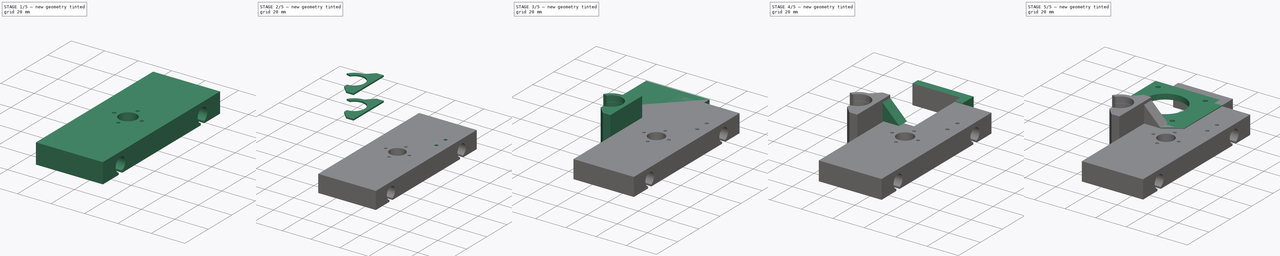
[diagram: build sequence overview — one tinted view per stage of 5, left to right]
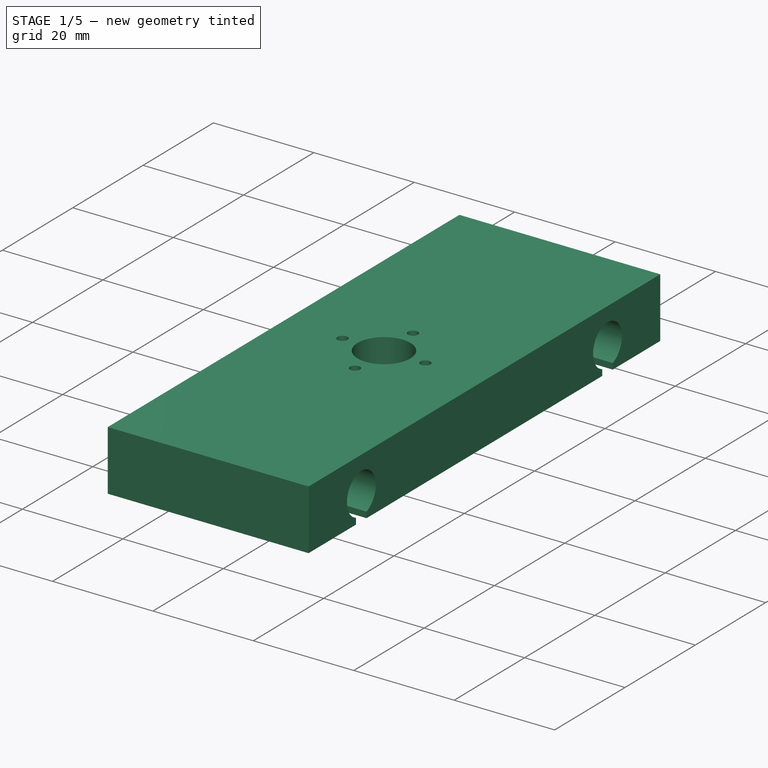
[diagram: stage 1 of 5 — iso view after this stage's code; geometry added in this stage tinted green]
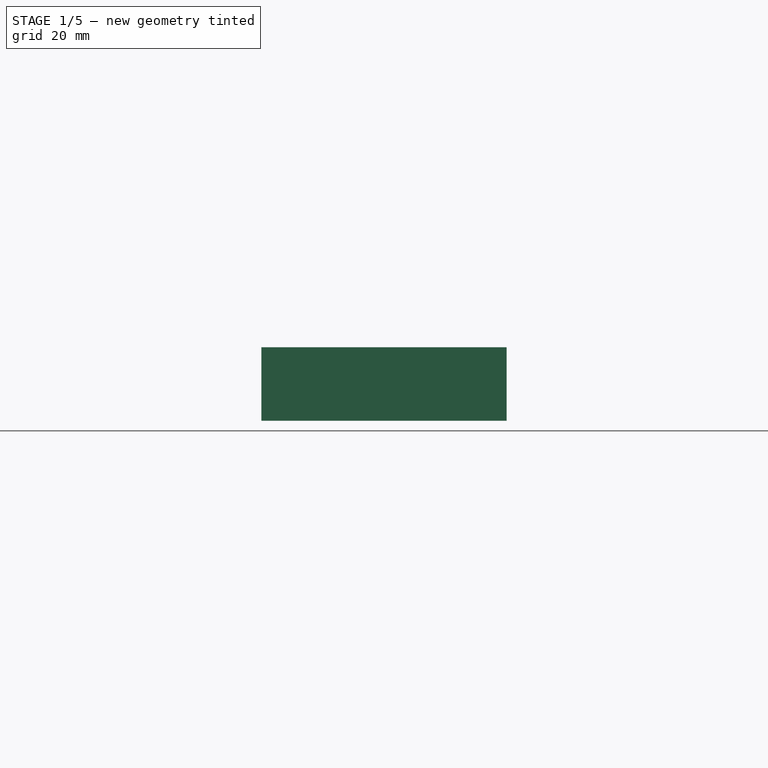
[diagram: stage 1 of 5 — front view after this stage's code; geometry added in this stage tinted green]
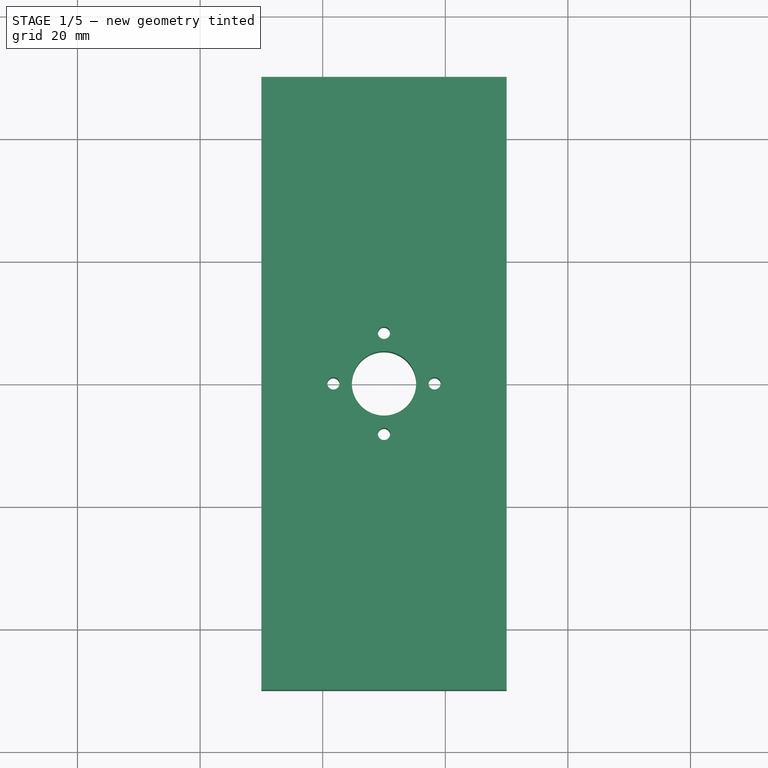
[diagram: stage 1 of 5 — top view after this stage's code; geometry added in this stage tinted green]
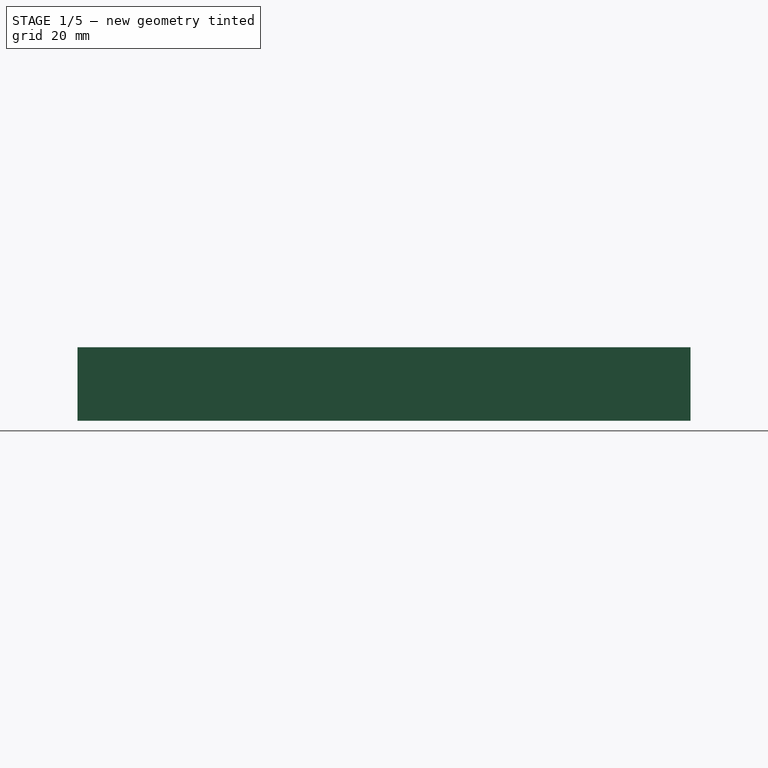
[diagram: stage 1 of 5 — right view after this stage's code; geometry added in this stage tinted green]
FCSTD DOCUMENT  (FreeCAD 0.15R4671 (Git))
Label: RShoulderV6
License: All rights reserved
LicenseURL: http://en.wikipedia.org/wiki/All_rights_reserved
objects: Sketcher::SketchObject×13, PartDesign::Pad×9, PartDesign::Pocket×4, Part::MultiFuse×2, Part::Cut×1
note: 42 computed .brp shape members not serialized (recipe doc carries the construction recipe); baked Part::Feature solids carry a one-line shape summary decoded from their .brp

FEATURE [Sketcher::SketchObject] Sketch  label="BaseSk"
  sketch-geometry (7):
    g0: Circle CenterX=30 CenterY=0 CenterZ=0 NormalX=0 NormalY=0 NormalZ=1 Radius=5.25
    g1: LineSegment StartX=50 StartY=-50 StartZ=0 EndX=50 EndY=50 EndZ=0
    g2: LineSegment StartX=10 StartY=20 StartZ=0 EndX=10 EndY=50 EndZ=0
    g3: LineSegment StartX=10 StartY=50 StartZ=0 EndX=50 EndY=50 EndZ=0
    g4: LineSegment StartX=10 StartY=-13.3852 StartZ=0 EndX=10 EndY=-50 EndZ=0
    g5: LineSegment StartX=10 StartY=-50 StartZ=0 EndX=50 EndY=-50 EndZ=0
    g6: LineSegment StartX=10 StartY=-13.3852 StartZ=0 EndX=10 EndY=20 EndZ=0
  constraints (14):
    c: Radius(g0) = 5.25
    c: DistanceX(g-1,g0) = 30
    c: Vertical(g1)
    c: DistanceY(g1,g1) = -100
    c: Vertical(g2)
    c: Coincident(g3,g1)
    c: Horizontal(g3)
    c: Vertical(g4)
    c: Coincident(g5,g4)
    c: Coincident(g5,g1)
    c: Horizontal(g5)
    c: Vertical(g6)
    c: Coincident(g2,g6)
    c: Coincident(g6,g4)
FEATURE [PartDesign::Pad] Pad  label="Base"
  Length = 12
  Length2 = 100
  Sketch = -> Sketch
  Type = 0
FEATURE [Sketcher::SketchObject] Sketch001  label="HorizontalRods"
  Placement = pos=(50,0,0) rot=(0.57735,0.57735,0.57735;2.0944rad)
  Support = -> Pad [Face3]
  sketch-geometry (8):
    g0: LineSegment StartX=-33.5116 StartY=1.1797 StartZ=0 EndX=-33.5116 EndY=0 EndZ=0
    g1: LineSegment StartX=-33.5116 StartY=0 StartZ=0 EndX=-36.5116 EndY=0 EndZ=0
    g2: LineSegment StartX=-36.5116 StartY=0 StartZ=0 EndX=-36.5116 EndY=1.18882 EndZ=0
    g3: LineSegment StartX=36.5 StartY=1.18424 StartZ=0 EndX=36.5 EndY=0 EndZ=0
    g4: LineSegment StartX=36.5 StartY=0 StartZ=0 EndX=33.5 EndY=0 EndZ=0
    g5: LineSegment StartX=33.5 StartY=0 StartZ=0 EndX=33.5 EndY=1.18424 EndZ=0
    g6: ArcOfCircle CenterX=35 CenterY=5 CenterZ=0 NormalX=0 NormalY=0 NormalZ=1 Radius=4.1 StartAngle=5.08694 EndAngle=10.621
    g7: ArcOfCircle CenterX=-35 CenterY=5 CenterZ=0 NormalX=0 NormalY=0 NormalZ=1 Radius=4.1 StartAngle=5.0839 EndAngle=10.618
  constraints (18):
    c: Coincident(g0,g1)
    c: Coincident(g1,g2)
    c: Horizontal(g1)
    c: Vertical(g0)
    c: Vertical(g2)
    c: DistanceX(g0,g2) = -3
    c: Coincident(g3,g4)
    c: Coincident(g4,g5)
    c: Horizontal(g4)
    c: Vertical(g3)
    c: Vertical(g5)
    c: DistanceX(g5,g3) = 3
    c: Coincident(g6,g3)
    c: Coincident(g6,g5)
    c: Coincident(g7,g0)
    c: Coincident(g7,g2)
    c: Radius(g7) = 4.1
    c: Radius(g6) = 4.1
FEATURE [PartDesign::Pocket] Pocket
  Length = 25
  Sketch = -> Sketch001
  Type = 0
FEATURE [Sketcher::SketchObject] Sketch005  label="NutScrewHoles"
  Placement = pos=(0,0,12) rot=(0,0,1;0rad)
  Support = -> Pocket [Face5]
  sketch-geometry (4):
    g0: Circle CenterX=29.9972 CenterY=8.25 CenterZ=0 NormalX=0 NormalY=0 NormalZ=1 Radius=1
    g1: Circle CenterX=21.7472 CenterY=0 CenterZ=0 NormalX=0 NormalY=0 NormalZ=1 Radius=1
    g2: Circle CenterX=38.2471 CenterY=0 CenterZ=0 NormalX=0 NormalY=0 NormalZ=1 Radius=1
    g3: Circle CenterX=29.9972 CenterY=-8.25 CenterZ=0 NormalX=0 NormalY=0 NormalZ=1 Radius=1
  constraints (11):
    c: PointOnObject(g1,g-1)
    c: Radius(g3) = 1
    c: Equal(g3,g2)
    c: Equal(g3,g0)
    c: Equal(g3,g1)
    c: PointOnObject(g2,g-1)
    c: DistanceX(g3,g0) = 0
    c: DistanceY(g3,g0) = 16.5
    c: DistanceX(g1,g2) = 16.5
    c: DistanceY(g0,g2) = -8.25
    c: DistanceX(g2,g0) = -8.25
FEATURE [PartDesign::Pocket] Pocket001
  Length = 12
  Sketch = -> Sketch005
  Type = 0
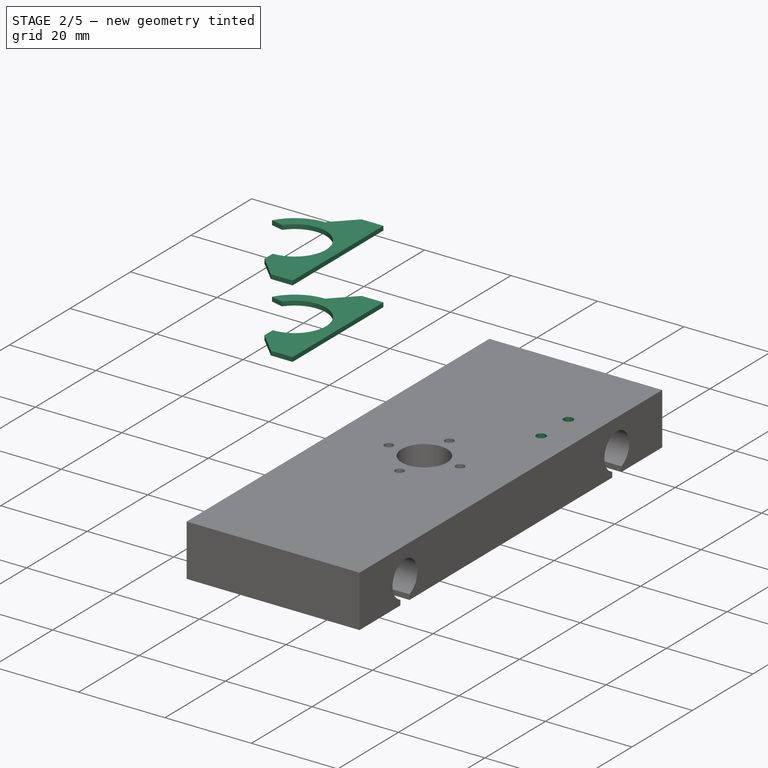
[diagram: stage 2 of 5 — iso view after this stage's code; geometry added in this stage tinted green]
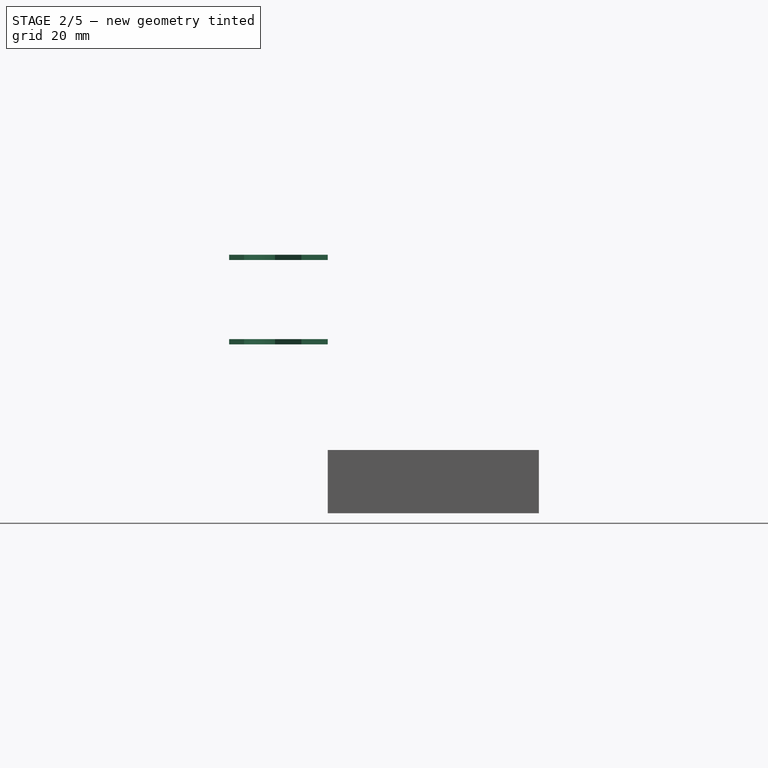
[diagram: stage 2 of 5 — front view after this stage's code; geometry added in this stage tinted green]
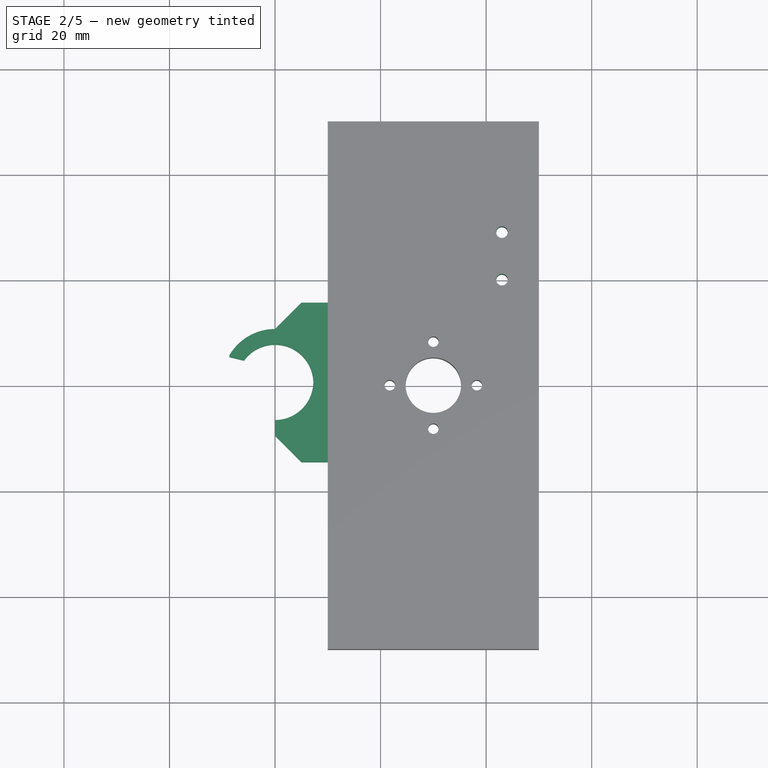
[diagram: stage 2 of 5 — top view after this stage's code; geometry added in this stage tinted green]
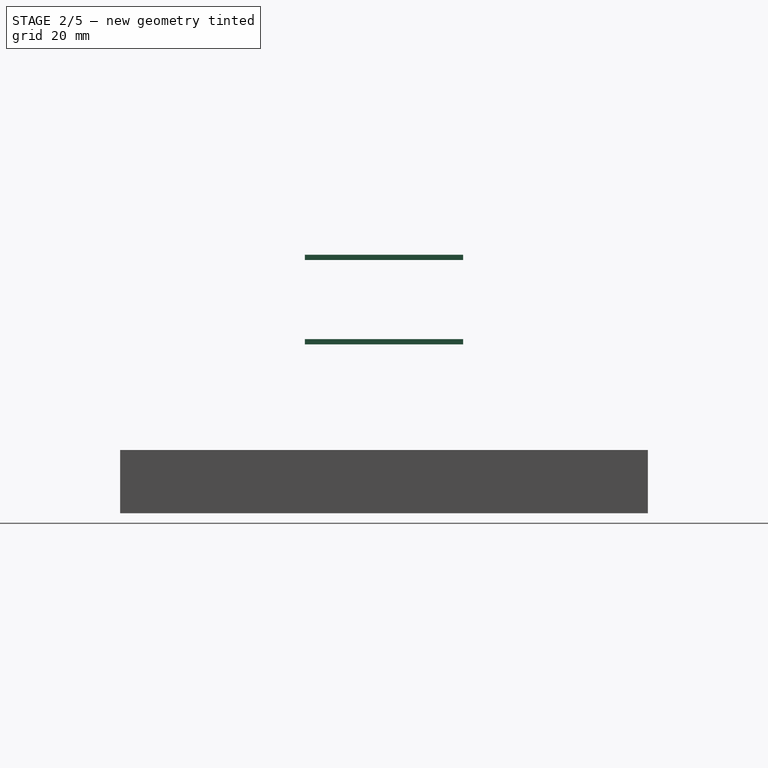
[diagram: stage 2 of 5 — right view after this stage's code; geometry added in this stage tinted green]
FEATURE [Sketcher::SketchObject] Sketch016  label="Base007"
  Placement = pos=(0,0,32) rot=(0,0,1;0rad)
  sketch-geometry (9):
    g0: LineSegment StartX=-5.8767 StartY=4.24581 StartZ=0 EndX=-8.70018 EndY=4.9302 EndZ=0
    g1: ArcOfCircle CenterX=0 CenterY=0 CenterZ=0 NormalX=0 NormalY=0 NormalZ=1 Radius=10 StartAngle=1.5708 EndAngle=2.62603
    g2: LineSegment StartX=4.98503 StartY=-15 StartZ=0 EndX=10 EndY=-15 EndZ=0
    g3: LineSegment StartX=10 StartY=-15 StartZ=0 EndX=10 EndY=15 EndZ=0
    g4: LineSegment StartX=10 StartY=15 StartZ=0 EndX=4.98503 EndY=15 EndZ=0
    g5: LineSegment StartX=-1e-12 StartY=10 StartZ=0 EndX=4.98503 EndY=15 EndZ=0
    g6: LineSegment StartX=0 StartY=-10 StartZ=0 EndX=4.98503 EndY=-15 EndZ=0
    g7: ArcOfCircle CenterX=0 CenterY=0 CenterZ=0 NormalX=0 NormalY=0 NormalZ=1 Radius=7.25 StartAngle=4.71239 EndAngle=8.79912
    g8: LineSegment StartX=0 StartY=-7.25 StartZ=0 EndX=0 EndY=-10 EndZ=0
  constraints (21):
    c: PointOnObject(g1,g-2)
    c: PointOnObject(g6,g-2)
    c: Coincident(g1,g-1)
    c: Coincident(g1,g0)
    c: Horizontal(g2)
    c: Coincident(g3,g2)
    c: Vertical(g3)
    c: Coincident(g4,g3)
    c: Horizontal(g4)
    c: DistanceY(g3,g2) = -30
    c: DistanceY(g-1,g3) = 15
    c: Coincident(g5,g1)
    c: Coincident(g5,g4)
    c: Coincident(g6,g2)
    c: DistanceX(g-1,g2) = 4.98503
    c: DistanceX(g2,g4) = 0
    c: Coincident(g7,g-1)
    c: Coincident(g7,g0)
    c: Coincident(g8,g7)
    c: Coincident(g8,g6)
    c: Vertical(g8)
FEATURE [Sketcher::SketchObject] Sketch017  label="Base008"
  Placement = pos=(0,0,48) rot=(0,0,1;0rad)
  sketch-geometry (9):
    g0: LineSegment StartX=-5.8767 StartY=4.24581 StartZ=0 EndX=-8.70018 EndY=4.9302 EndZ=0
    g1: ArcOfCircle CenterX=0 CenterY=0 CenterZ=0 NormalX=0 NormalY=0 NormalZ=1 Radius=10 StartAngle=1.5708 EndAngle=2.62603
    g2: LineSegment StartX=4.98503 StartY=-15 StartZ=0 EndX=10 EndY=-15 EndZ=0
    g3: LineSegment StartX=10 StartY=-15 StartZ=0 EndX=10 EndY=15 EndZ=0
    g4: LineSegment StartX=10 StartY=15 StartZ=0 EndX=4.98503 EndY=15 EndZ=0
    g5: LineSegment StartX=-1e-12 StartY=10 StartZ=0 EndX=4.98503 EndY=15 EndZ=0
    g6: LineSegment StartX=0 StartY=-10 StartZ=0 EndX=4.98503 EndY=-15 EndZ=0
    g7: ArcOfCircle CenterX=0 CenterY=0 CenterZ=0 NormalX=0 NormalY=0 NormalZ=1 Radius=7.25 StartAngle=4.71239 EndAngle=8.79912
    g8: LineSegment StartX=0 StartY=-7.25 StartZ=0 EndX=0 EndY=-10 EndZ=0
  constraints (21):
    c: PointOnObject(g1,g-2)
    c: PointOnObject(g6,g-2)
    c: Coincident(g1,g-1)
    c: Coincident(g1,g0)
    c: Horizontal(g2)
    c: Coincident(g3,g2)
    c: Vertical(g3)
    c: Coincident(g4,g3)
    c: Horizontal(g4)
    c: DistanceY(g3,g2) = -30
    c: DistanceY(g-1,g3) = 15
    c: Coincident(g5,g1)
    c: Coincident(g5,g4)
    c: Coincident(g6,g2)
    c: DistanceX(g-1,g2) = 4.98503
    c: DistanceX(g2,g4) = 0
    c: Coincident(g7,g-1)
    c: Coincident(g7,g0)
    c: Coincident(g8,g7)
    c: Coincident(g8,g6)
    c: Vertical(g8)
FEATURE [PartDesign::Pad] Pad016
  Length = 1
  Length2 = 100
  Placement = pos=(0,0,32) rot=(0,0,1;0rad)
  Sketch = -> Sketch016
  Type = 0
FEATURE [PartDesign::Pad] Pad017
  Length = 1
  Length2 = 100
  Placement = pos=(0,0,48) rot=(0,0,1;0rad)
  Sketch = -> Sketch017
  Type = 0
FEATURE [PartDesign::Pocket] Pocket002
  Length = 12
  Sketch = -> Sketch014
  Type = 0
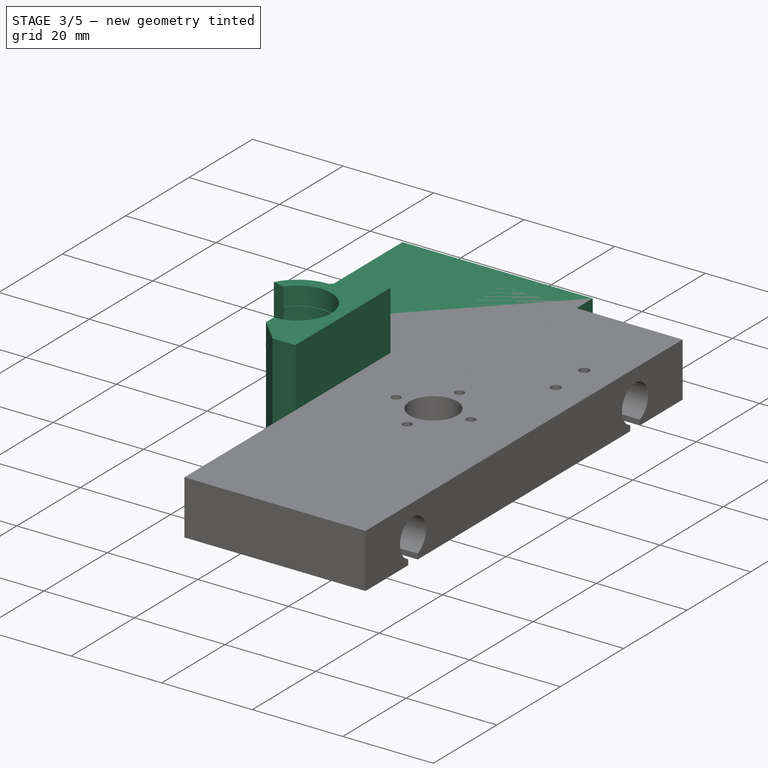
[diagram: stage 3 of 5 — iso view after this stage's code; geometry added in this stage tinted green]
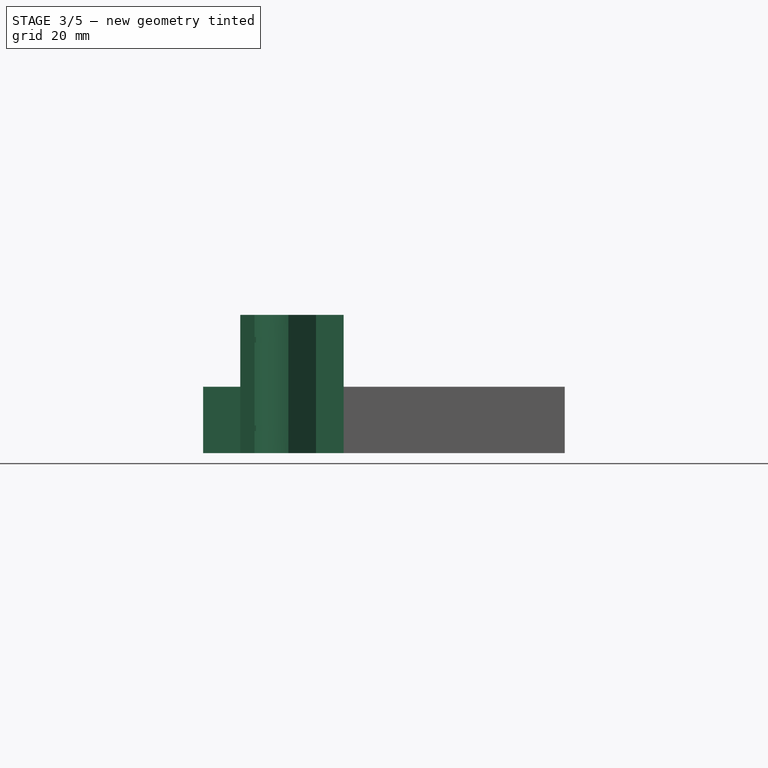
[diagram: stage 3 of 5 — front view after this stage's code; geometry added in this stage tinted green]
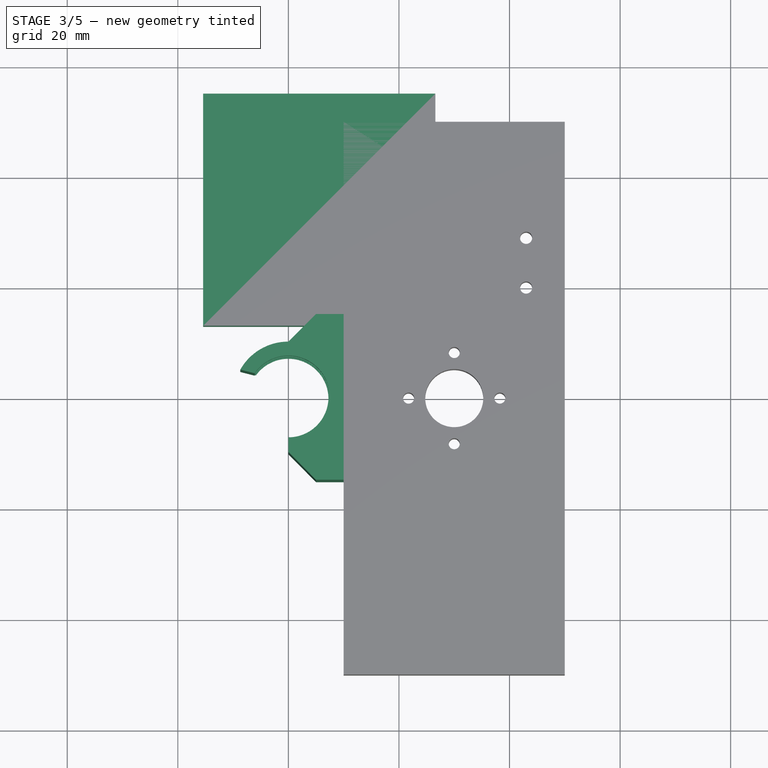
[diagram: stage 3 of 5 — top view after this stage's code; geometry added in this stage tinted green]
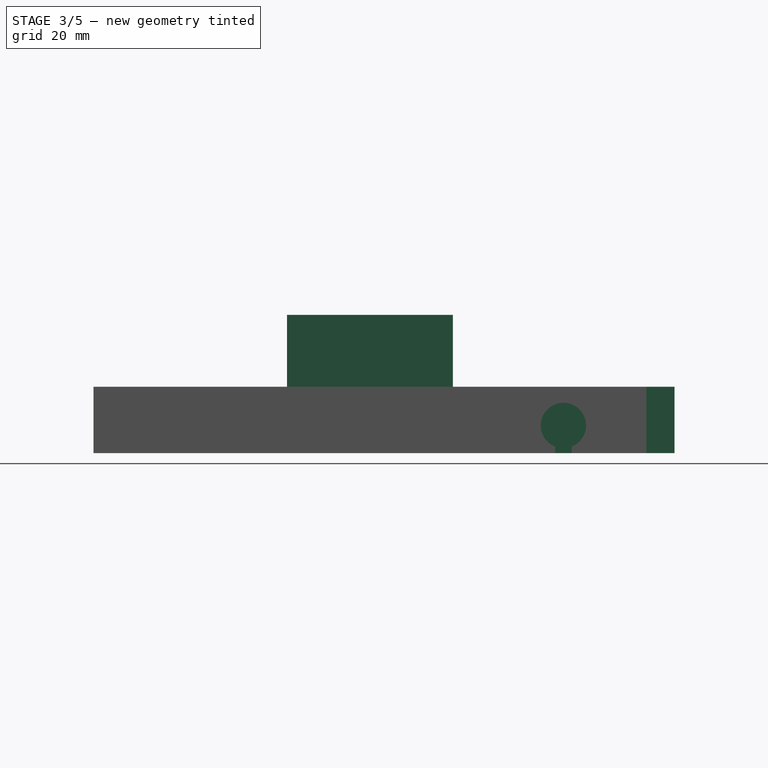
[diagram: stage 3 of 5 — right view after this stage's code; geometry added in this stage tinted green]
FEATURE [Sketcher::SketchObject] Sketch014
  Placement = pos=(0,0,12) rot=(0,0,1;0rad)
  Support = -> Pocket001 [Face5]
  sketch-geometry (2):
    g0: Circle CenterX=43 CenterY=29.0019 CenterZ=0 NormalX=0 NormalY=0 NormalZ=1 Radius=1.1
    g1: Circle CenterX=43 CenterY=20.0019 CenterZ=0 NormalX=0 NormalY=0 NormalZ=1 Radius=1.1
  constraints (5):
    c: Radius(g1) = 1.1
    c: Equal(g1,g0)
    c: DistanceY(g0,g1) = -9
    c: DistanceX(g0,g1) = 0
    c: DistanceX(g-1,g0) = 43
FEATURE [Sketcher::SketchObject] Sketch015  label="Base004"
  Placement = pos=(0,0,28) rot=(0,0,1;0rad)
  sketch-geometry (9):
    g0: LineSegment StartX=-6.12405 StartY=4.27437 StartZ=0 EndX=-8.70018 EndY=4.9302 EndZ=0
    g1: ArcOfCircle CenterX=0 CenterY=0 CenterZ=0 NormalX=0 NormalY=0 NormalZ=1 Radius=10 StartAngle=1.5708 EndAngle=2.62603
    g2: LineSegment StartX=4.98503 StartY=-15 StartZ=0 EndX=10 EndY=-15 EndZ=0
    g3: LineSegment StartX=10 StartY=-15 StartZ=0 EndX=10 EndY=15 EndZ=0
    g4: LineSegment StartX=10 StartY=15 StartZ=0 EndX=4.98503 EndY=15 EndZ=0
    g5: LineSegment StartX=-1e-12 StartY=10 StartZ=0 EndX=4.98503 EndY=15 EndZ=0
    g6: LineSegment StartX=0 StartY=-9.95278 StartZ=0 EndX=4.98503 EndY=-15 EndZ=0
    g7: ArcOfCircle CenterX=0 CenterY=0 CenterZ=0 NormalX=0 NormalY=0 NormalZ=1 Radius=7.46821 StartAngle=4.71239 EndAngle=8.81542
    g8: LineSegment StartX=0 StartY=-7.46821 StartZ=0 EndX=0 EndY=-9.95278 EndZ=0
  constraints (21):
    c: PointOnObject(g1,g-2)
    c: PointOnObject(g6,g-2)
    c: Coincident(g1,g-1)
    c: Coincident(g1,g0)
    c: Horizontal(g2)
    c: Coincident(g3,g2)
    c: Vertical(g3)
    c: Coincident(g4,g3)
    c: Horizontal(g4)
    c: DistanceY(g3,g2) = -30
    c: DistanceY(g-1,g3) = 15
    c: Coincident(g5,g1)
    c: Coincident(g5,g4)
    c: Coincident(g6,g2)
    c: DistanceX(g-1,g2) = 4.98503
    c: DistanceX(g4,g2) = 0
    c: Coincident(g7,g-1)
    c: Coincident(g7,g0)
    c: Coincident(g8,g7)
    c: Coincident(g8,g6)
    c: Vertical(g8)
FEATURE [PartDesign::Pad] Pad015
  Length = 25
  Length2 = 100
  Placement = pos=(0,0,28) rot=(0,0,1;0rad)
  Sketch = -> Sketch015
  Type = 0
FEATURE [Part::MultiFuse] Fusion  label="BearingLodge"
  Placement = pos=(0,0,-28) rot=(0,0,1;0rad)
  Shapes = -> [Pad015,Pad016,Pad017]
FEATURE [Sketcher::SketchObject] Sketch019
  sketch-geometry (4):
    g0: LineSegment StartX=26.5877 StartY=13.0902 StartZ=0 EndX=-15.4123 EndY=13.0902 EndZ=0
    g1: LineSegment StartX=-15.4123 StartY=13.0902 StartZ=0 EndX=-15.4123 EndY=55.0902 EndZ=0
    g2: LineSegment StartX=-15.4123 StartY=55.0902 StartZ=0 EndX=26.5877 EndY=55.0902 EndZ=0
    g3: LineSegment StartX=26.5877 StartY=55.0902 StartZ=0 EndX=26.5877 EndY=13.0902 EndZ=0
  constraints (10):
    c: Coincident(g0,g1)
    c: Coincident(g1,g2)
    c: Coincident(g2,g3)
    c: Coincident(g3,g0)
    c: Horizontal(g0)
    c: Horizontal(g2)
    c: Vertical(g1)
    c: Vertical(g3)
    c: DistanceY(g0,g2) = 42
    c: DistanceX(g2,g1) = -42
FEATURE [PartDesign::Pad] Pad019  label="Cut001"
  Length = 12
  Length2 = 100
  Sketch = -> Sketch019
  Type = 0
FEATURE [Part::MultiFuse] Fusion001
  Shapes = -> [Fusion,Pocket002]
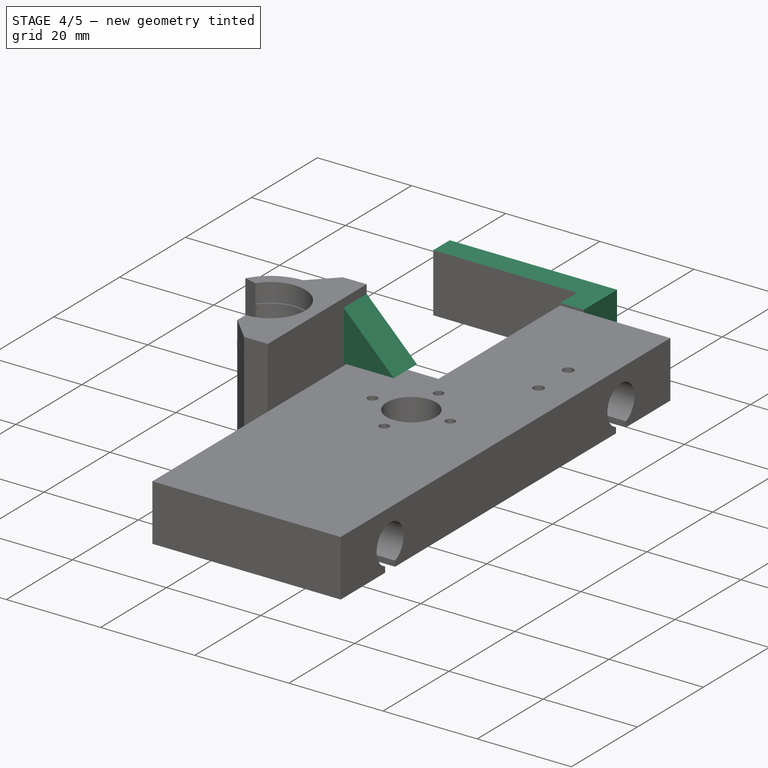
[diagram: stage 4 of 5 — iso view after this stage's code; geometry added in this stage tinted green]
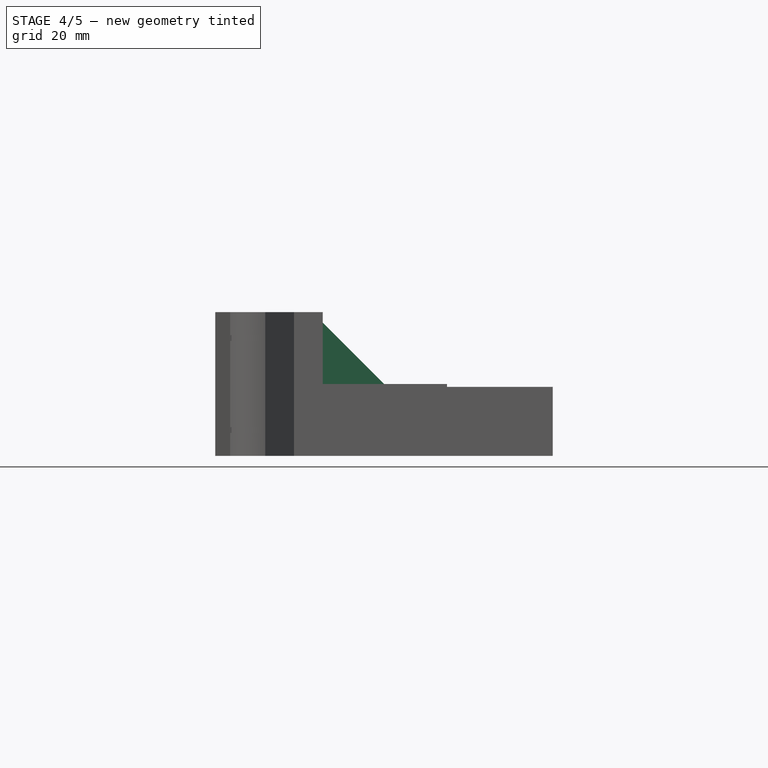
[diagram: stage 4 of 5 — front view after this stage's code; geometry added in this stage tinted green]
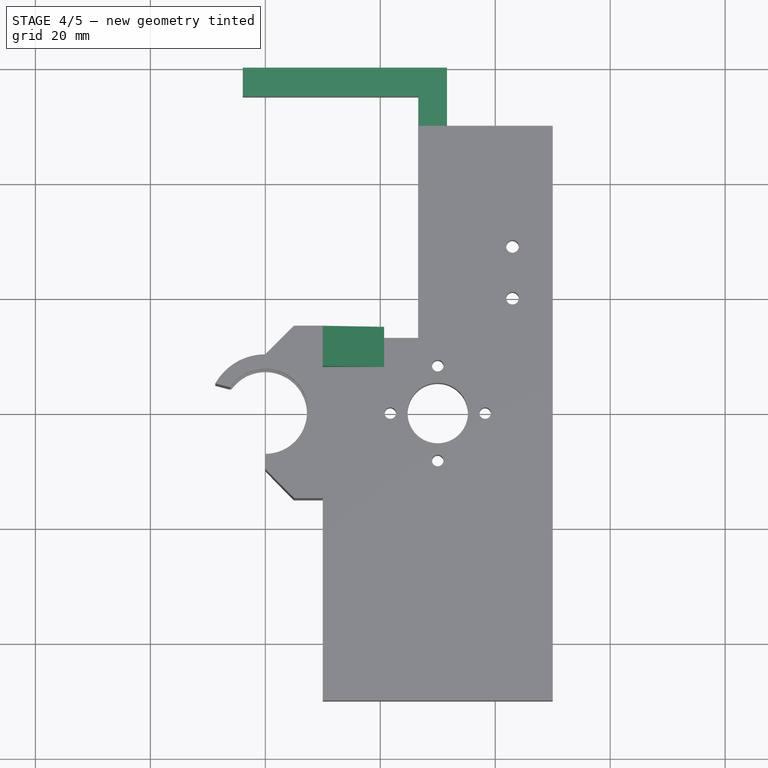
[diagram: stage 4 of 5 — top view after this stage's code; geometry added in this stage tinted green]
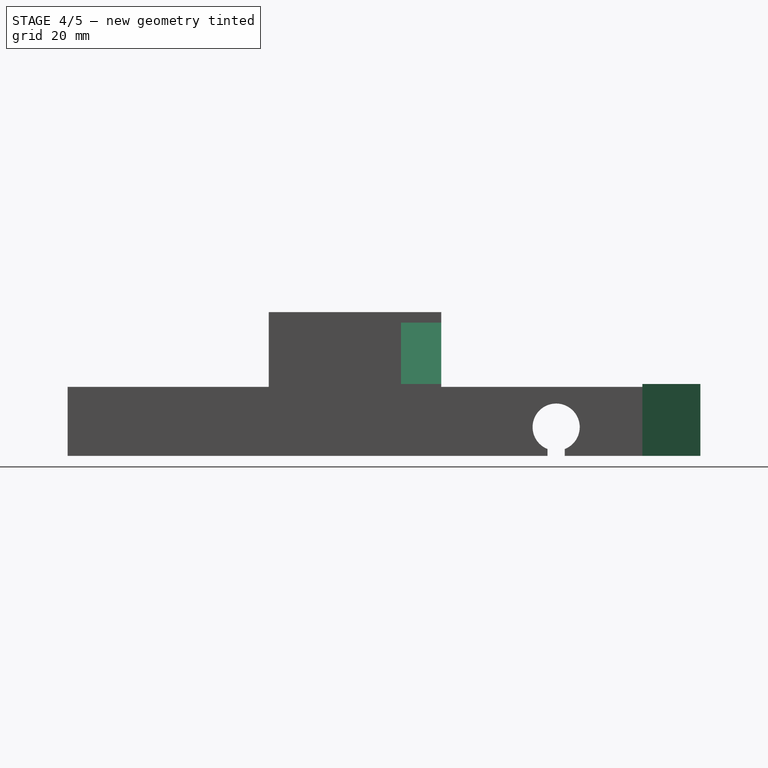
[diagram: stage 4 of 5 — right view after this stage's code; geometry added in this stage tinted green]
FEATURE [Sketcher::SketchObject] Sketch024
  sketch-geometry (6):
    g0: LineSegment StartX=26.6 StartY=50 StartZ=0 EndX=31.6 EndY=50 EndZ=0
    g1: LineSegment StartX=31.6 StartY=50 StartZ=0 EndX=31.6 EndY=60.1 EndZ=0
    g2: LineSegment StartX=31.6 StartY=60.1 StartZ=0 EndX=-3.92528 EndY=60.1 EndZ=0
    g3: LineSegment StartX=-3.92528 StartY=60.1 StartZ=0 EndX=-3.92528 EndY=55.1 EndZ=0
    g4: LineSegment StartX=-3.92528 StartY=55.1 StartZ=0 EndX=26.6 EndY=55.1 EndZ=0
    g5: LineSegment StartX=26.6 StartY=55.1 StartZ=0 EndX=26.6 EndY=50 EndZ=0
  constraints (17):
    c: Horizontal(g0)
    c: Coincident(g0,g1)
    c: Vertical(g1)
    c: Coincident(g1,g2)
    c: Horizontal(g2)
    c: Coincident(g2,g3)
    c: Coincident(g3,g4)
    c: Horizontal(g4)
    c: Coincident(g4,g5)
    c: Coincident(g5,g0)
    c: Vertical(g5)
    c: Vertical(g3)
    c: DistanceX(g0) = 5
    c: DistanceY(g3) = -5
    c: DistanceX(g-1,g0) = 26.6
    c: DistanceY(g-1,g0) = 50
    c: DistanceY(g-1,g3) = 55.1
FEATURE [PartDesign::Pad] Pad022
  Length = 12.5
  Length2 = 100
  Sketch = -> Sketch024
  Type = 0
FEATURE [Sketcher::SketchObject] Sketch028
  Placement = pos=(0,8,-14) rot=(1,0,0;1.5708rad)
  sketch-geometry (3):
    g0: LineSegment StartX=10 StartY=37.1761 StartZ=0 EndX=10 EndY=26.5 EndZ=0
    g1: LineSegment StartX=10 StartY=26.5 StartZ=0 EndX=20.6761 EndY=26.5 EndZ=0
    g2: LineSegment StartX=20.6761 StartY=26.5 StartZ=0 EndX=10 EndY=37.1761 EndZ=0
  constraints (8):
    c: Coincident(g0,g1)
    c: Horizontal(g1)
    c: Coincident(g1,g2)
    c: Coincident(g2,g0)
    c: Vertical(g0)
    c: DistanceX(g-1,g0) = 10
    c: DistanceY(g-1,g0) = 26.5
    c: Angle(g2,g1) = 0.785398
FEATURE [PartDesign::Pad] Pad026
  Length = 7
  Length2 = 100
  Placement = pos=(0,8,-14) rot=(1,0,0;1.5708rad)
  Reversed = true
  Sketch = -> Sketch028
  Type = 0
FEATURE [Part::Cut] Cut
  Base = -> Fusion001
  Tool = -> Pad019
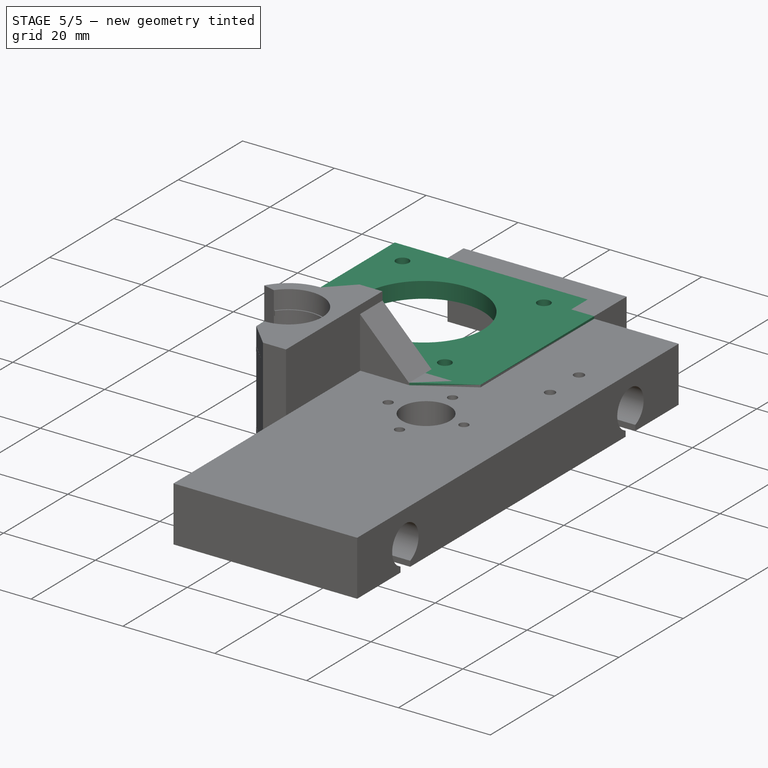
[diagram: stage 5 of 5 — iso view after this stage's code; geometry added in this stage tinted green]
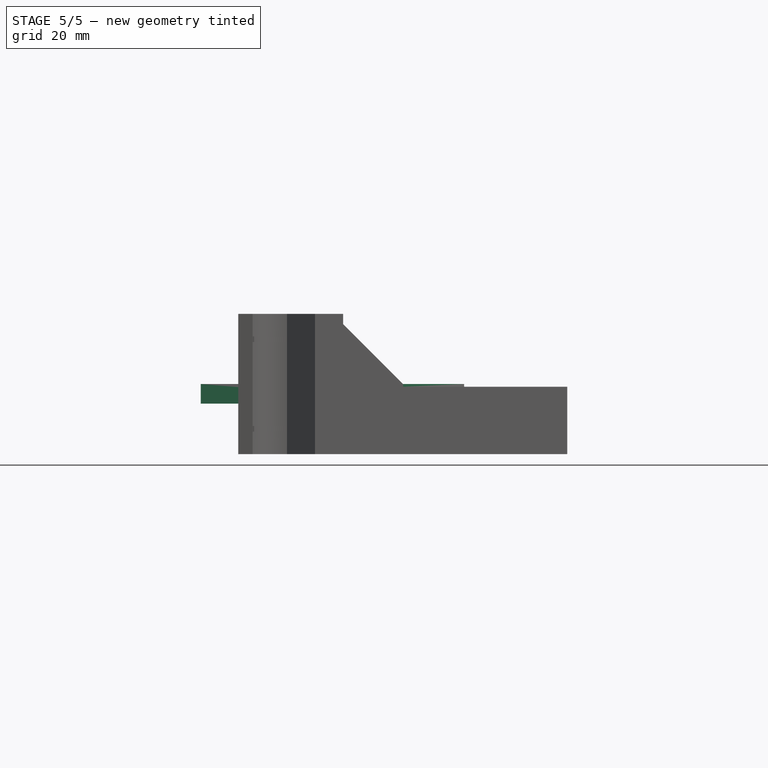
[diagram: stage 5 of 5 — front view after this stage's code; geometry added in this stage tinted green]
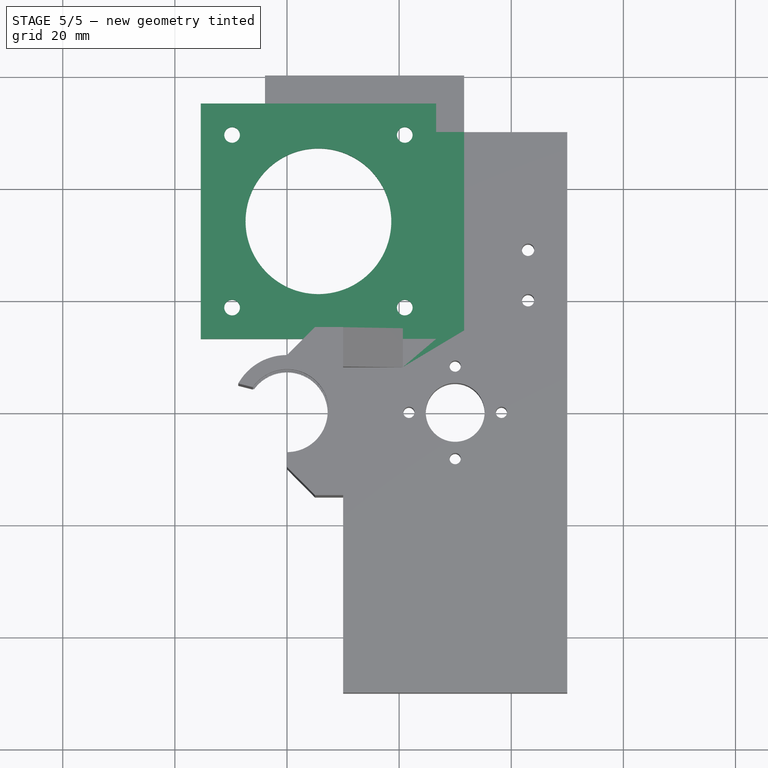
[diagram: stage 5 of 5 — top view after this stage's code; geometry added in this stage tinted green]
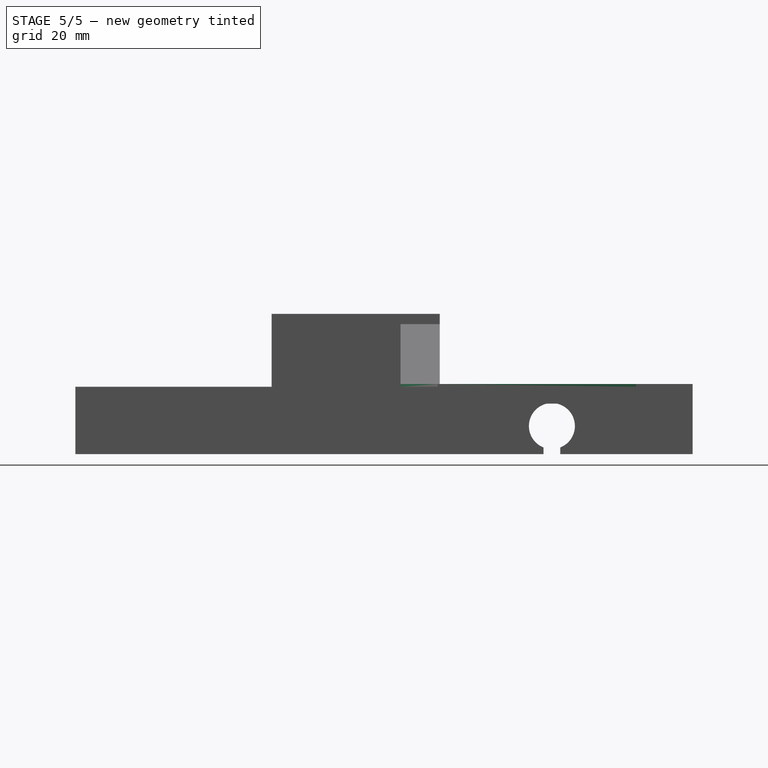
[diagram: stage 5 of 5 — right view after this stage's code; geometry added in this stage tinted green]
FEATURE [Sketcher::SketchObject] Sketch018
  Placement = pos=(14.7,64.62,9) rot=(0,0,1;0rad)
  sketch-geometry (9):
    g0: LineSegment StartX=11.9036 StartY=-9.52878 StartZ=0 EndX=-30.0964 EndY=-9.52878 EndZ=0
    g1: LineSegment StartX=11.9036 StartY=-51.5288 StartZ=0 EndX=-30.0964 EndY=-51.5288 EndZ=0
    g2: LineSegment StartX=11.9036 StartY=-9.52878 StartZ=0 EndX=11.9036 EndY=-51.5288 EndZ=0
    g3: Circle CenterX=-9.09643 CenterY=-30.5288 CenterZ=0 NormalX=0 NormalY=0 NormalZ=1 Radius=13
    g4: Circle CenterX=6.30357 CenterY=-15.1288 CenterZ=0 NormalX=0 NormalY=0 NormalZ=1 Radius=1.4
    g5: Circle CenterX=6.30357 CenterY=-45.9288 CenterZ=0 NormalX=0 NormalY=0 NormalZ=1 Radius=1.4
    g6: Circle CenterX=-24.4964 CenterY=-15.1288 CenterZ=0 NormalX=0 NormalY=0 NormalZ=1 Radius=1.4
    g7: Circle CenterX=-24.4964 CenterY=-45.9288 CenterZ=0 NormalX=0 NormalY=0 NormalZ=1 Radius=1.4
    g8: LineSegment StartX=-30.0964 StartY=-9.52878 StartZ=0 EndX=-30.0964 EndY=-51.5288 EndZ=0
  constraints (26):
    c: Horizontal(g1)
    c: Horizontal(g0)
    c: Vertical(g2)
    c: Coincident(g1,g2)
    c: Coincident(g2,g0)
    c: Radius(g3) = 13
    c: Radius(g7) = 1.4
    c: Equal(g7,g6)
    c: Equal(g7,g4)
    c: Equal(g7,g5)
    c: DistanceY(g7,g5) = 0
    c: DistanceY(g4,g6) = 0
    c: DistanceX(g4,g5) = 0
    c: DistanceX(g6,g7) = 0
    c: Vertical(g8)
    c: DistanceY(g5,g4) = 30.8
    c: DistanceX(g5,g7) = -30.8
    c: DistanceX(g5,g1) = 5.6
    c: DistanceY(g5,g1) = -5.6
    c: DistanceY(g4,g0) = 5.6
    c: Equal(g0,g1)
    c: DistanceX(g4,g3) = -15.4
    c: DistanceY(g4,g3) = -15.4
    c: Coincident(g8,g0)
    c: Coincident(g8,g1)
    c: DistanceX(g1,g7) = 5.6
FEATURE [PartDesign::Pad] Pad018
  Length = 3.5
  Length2 = 100
  Placement = pos=(14.7,64.62,9) rot=(0,0,1;0rad)
  Sketch = -> Sketch018
  Type = 0
FEATURE [Sketcher::SketchObject] Sketch020
  Placement = pos=(0,0,12) rot=(0,0,1;0rad)
  sketch-geometry (6):
    g0: LineSegment StartX=26.6 StartY=13.1 StartZ=0 EndX=10 EndY=13.1 EndZ=0
    g1: LineSegment StartX=10 StartY=13.1 StartZ=0 EndX=10 EndY=8.1 EndZ=0
    g2: LineSegment StartX=10 StartY=8.1 StartZ=0 EndX=31.6 EndY=8.1 EndZ=0
    g3: LineSegment StartX=31.6 StartY=8.1 StartZ=0 EndX=31.6 EndY=50 EndZ=0
    g4: LineSegment StartX=31.6 StartY=50 StartZ=0 EndX=26.6 EndY=50 EndZ=0
    g5: LineSegment StartX=26.6 StartY=50 StartZ=0 EndX=26.6 EndY=13.1 EndZ=0
  constraints (18):
    c: Horizontal(g0)
    c: Coincident(g0,g1)
    c: Coincident(g1,g2)
    c: Coincident(g2,g3)
    c: Vertical(g3)
    c: Coincident(g3,g4)
    c: Coincident(g4,g5)
    c: Coincident(g5,g0)
    c: Vertical(g5)
    c: Horizontal(g2)
    c: Vertical(g1)
    c: Horizontal(g4)
    c: DistanceY(g-1,g0) = 13.1
    c: DistanceX(g-1,g4) = 26.6
    c: DistanceX(g-1,g1) = 10
    c: DistanceY(g-1,g3) = 50
    c: DistanceY(g1) = -5
    c: DistanceX(g4) = -5
FEATURE [PartDesign::Pad] Pad020
  Length = 0.5
  Length2 = 100
  Placement = pos=(0,0,12) rot=(0,0,1;0rad)
  Sketch = -> Sketch020
  Type = 0
FEATURE [Sketcher::SketchObject] Sketch021
  Placement = pos=(0,0,12.5) rot=(0,0,1;0rad)
  Support = -> Pad020 [Face8]
  sketch-geometry (3):
    g0: LineSegment StartX=20.2785 StartY=7.84506 StartZ=0 EndX=31.8873 EndY=14.7984 EndZ=0
    g1: LineSegment StartX=31.8873 StartY=14.7984 StartZ=0 EndX=31.8873 EndY=7.84506 EndZ=0
    g2: LineSegment StartX=31.8873 StartY=7.84506 StartZ=0 EndX=20.2785 EndY=7.84506 EndZ=0
  constraints (5):
    c: Coincident(g0,g1)
    c: Vertical(g1)
    c: Coincident(g1,g2)
    c: Coincident(g2,g0)
    c: Horizontal(g2)
FEATURE [PartDesign::Pocket] Pocket003
  Length = 30
  Placement = pos=(0,0,12) rot=(0,0,1;0rad)
  Sketch = -> Sketch021
  Type = 0
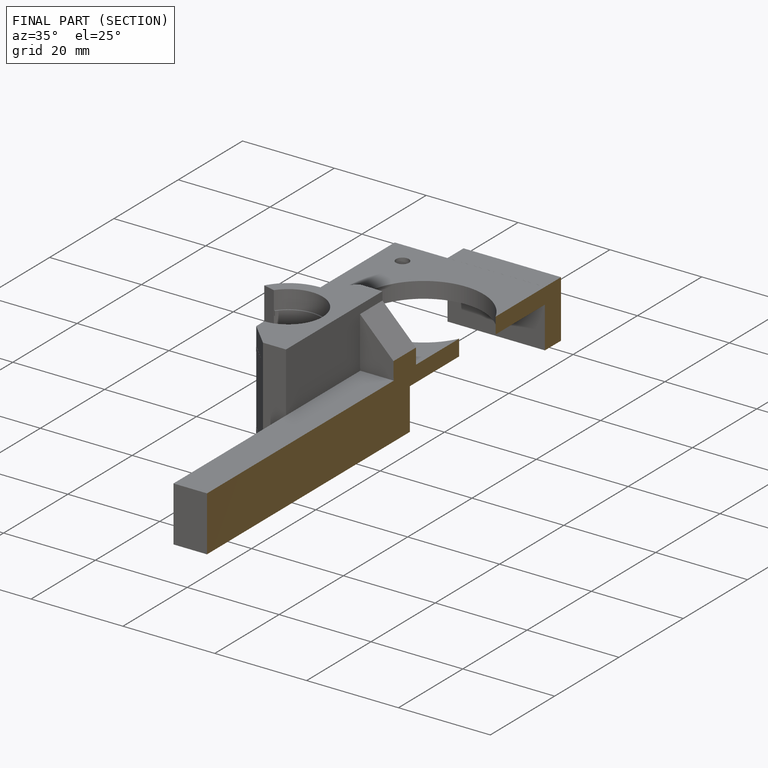
[diagram: finished part — half-section view (interior)]
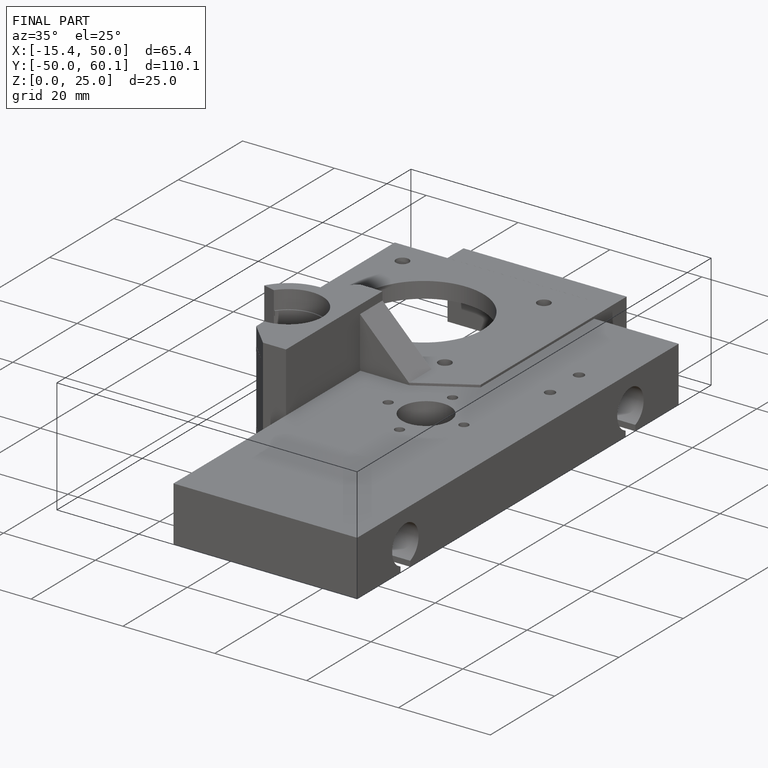
[diagram: finished part — iso view with bounding-box wireframe]
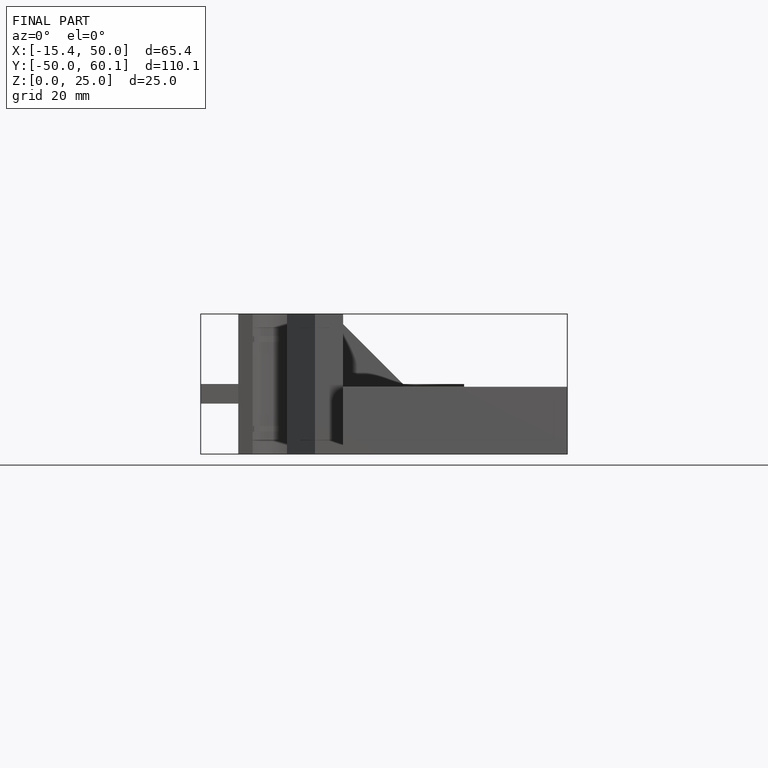
[diagram: finished part — front view with bounding-box wireframe]
